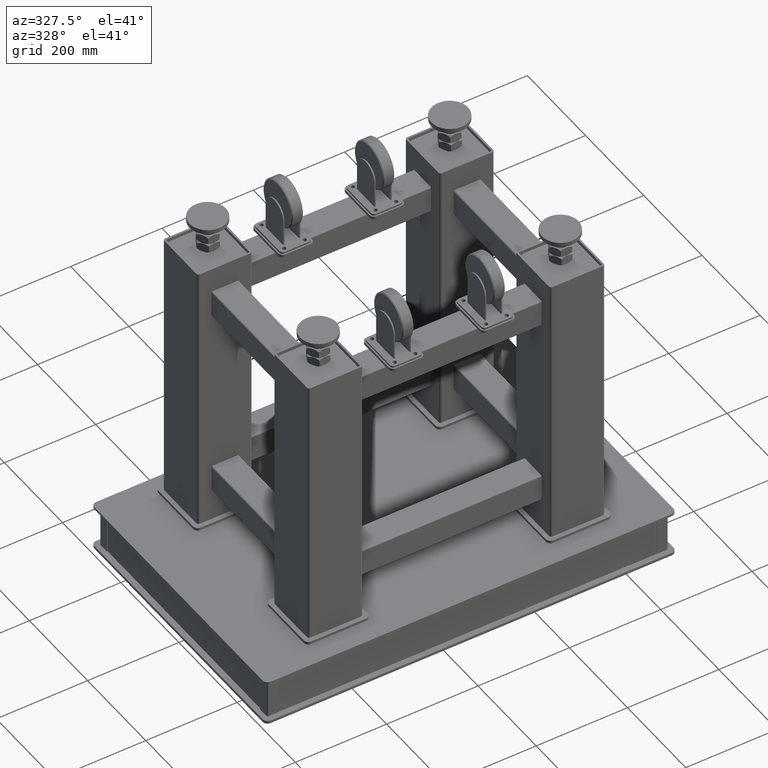
[diagram: clean part render]
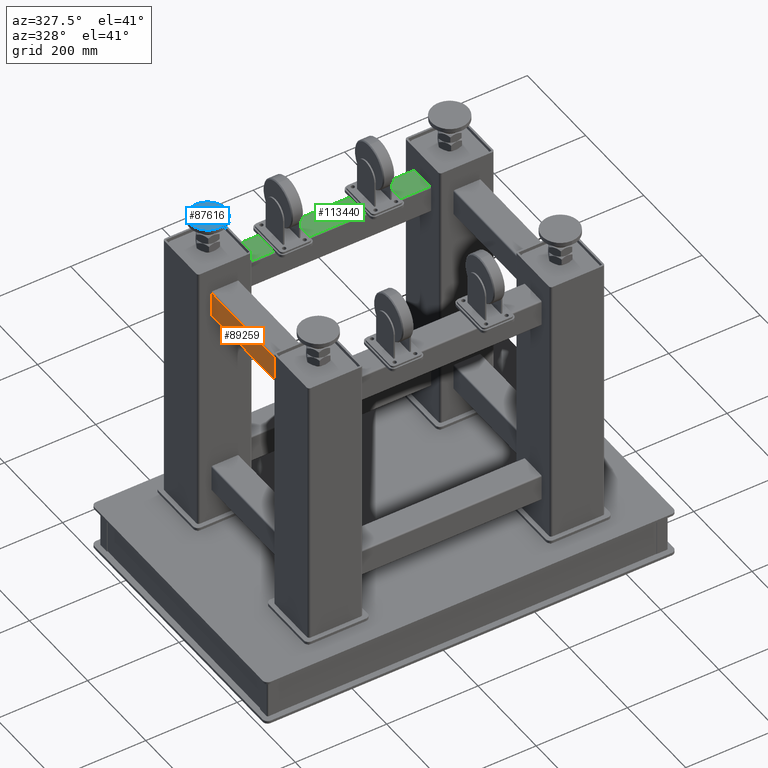
[diagram: same view with three faces highlighted in distinct colors, each labeled with its STEP entity id]
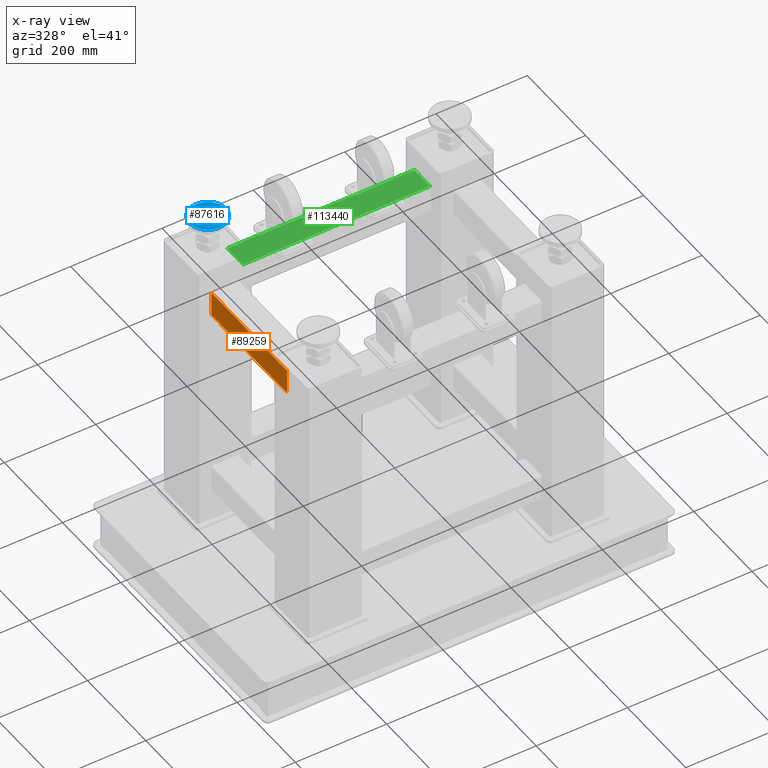
[diagram: x-ray of the same camera — body ghosted, the three highlighted faces saturated]
A machine part, auxiliary view with three faces highlighted in distinct colors.
The next image is the same camera in x-ray (body ghosted, the three faces saturated) — at least one of them is partly hidden behind the body in this view.
Their STEP definitions:

[orange] entity #89259 — the highlighted planar face has unit normal (1, 0, -0).
#1156 = DIRECTION ( 'NONE',  ( 3.803541843623208790E-17, -1.110223024625156787E-16, 1.000000000000000000 ) ) ;
#5625 = CARTESIAN_POINT ( 'NONE',  ( -1047.357977528089350, 67.92441947565563964, 207.5000000000000284 ) ) ;
#6984 = CARTESIAN_POINT ( 'NONE',  ( -1047.357977528089350, -232.0755805243443604, 153.5000000000000568 ) ) ;
#19360 = EDGE_CURVE ( 'NONE', #83468, #59288, #31604, .T. ) ;
#28895 = LINE ( 'NONE', #29522, #111972 ) ;
#29522 = CARTESIAN_POINT ( 'NONE',  ( -1047.357977528089350, -232.0755805243443604, 207.5000000000000000 ) ) ;
#29741 = VECTOR ( 'NONE', #123723, 1000.000000000000000 ) ;
#31604 = LINE ( 'NONE', #118300, #37560 ) ;
#37301 = AXIS2_PLACEMENT_3D ( 'NONE', #119129, #80188, #1156 ) ;
#37560 = VECTOR ( 'NONE', #43108, 1000.000000000000000 ) ;
#43108 = DIRECTION ( 'NONE',  ( -1.665334536937734811E-16, 1.110223024625156787E-16, -1.000000000000000000 ) ) ;
#43143 = ORIENTED_EDGE ( 'NONE', *, *, #19360, .F. ) ;
#45657 = VERTEX_POINT ( 'NONE', #59857 ) ;
#50084 = EDGE_CURVE ( 'NONE', #45657, #111856, #69970, .T. ) ;
#54966 = LINE ( 'NONE', #6984, #29741 ) ;
#58587 = VECTOR ( 'NONE', #108279, 1000.000000000000000 ) ;
#59288 = VERTEX_POINT ( 'NONE', #79363 ) ;
#59857 = CARTESIAN_POINT ( 'NONE',  ( -1047.357977528089350, 327.9244194756557249, 207.5000000000000853 ) ) ;
#66291 = FACE_OUTER_BOUND ( 'NONE', #77871, .T. ) ;
#67746 = DIRECTION ( 'NONE',  ( 6.245004513516505540E-17, -1.000000000000000000, -1.110223024625156787E-16 ) ) ;
#68767 = ORIENTED_EDGE ( 'NONE', *, *, #70555, .F. ) ;
#69970 = LINE ( 'NONE', #89105, #58587 ) ;
#70555 = EDGE_CURVE ( 'NONE', #59288, #111856, #54966, .T. ) ;
#77871 = EDGE_LOOP ( 'NONE', ( #68767, #43143, #110651, #91598 ) ) ;
#79363 = CARTESIAN_POINT ( 'NONE',  ( -1047.357977528089350, 67.92441947565563964, 153.5000000000000284 ) ) ;
#80188 = DIRECTION ( 'NONE',  ( 1.000000000000000000, 6.245004513516506772E-17, -3.803541843623208174E-17 ) ) ;
#83468 = VERTEX_POINT ( 'NONE', #5625 ) ;
#89105 = CARTESIAN_POINT ( 'NONE',  ( -1047.357977528089350, 327.9244194756557249, 207.5000000000000853 ) ) ;
#89259 = ADVANCED_FACE ( 'NONE', ( #66291 ), #124874, .F. ) ;
#91598 = ORIENTED_EDGE ( 'NONE', *, *, #50084, .T. ) ;
#97133 = EDGE_CURVE ( 'NONE', #45657, #83468, #28895, .T. ) ;
#108279 = DIRECTION ( 'NONE',  ( -1.665334536937734811E-16, 1.110223024625156787E-16, -1.000000000000000000 ) ) ;
#110651 = ORIENTED_EDGE ( 'NONE', *, *, #97133, .F. ) ;
#111856 = VERTEX_POINT ( 'NONE', #113737 ) ;
#111972 = VECTOR ( 'NONE', #67746, 1000.000000000000000 ) ;
#113737 = CARTESIAN_POINT ( 'NONE',  ( -1047.357977528089350, 327.9244194756557249, 153.5000000000001137 ) ) ;
#118300 = CARTESIAN_POINT ( 'NONE',  ( -1047.357977528089350, 67.92441947565563964, 207.5000000000000284 ) ) ;
#119129 = CARTESIAN_POINT ( 'NONE',  ( -1047.357977528089350, -232.0755805243443604, 153.5000000000000568 ) ) ;
#123723 = DIRECTION ( 'NONE',  ( -6.245004513516505540E-17, 1.000000000000000000, 1.110223024625156787E-16 ) ) ;
#124874 = PLANE ( 'NONE',  #37301 ) ;

[blue] entity #87616 — the highlighted planar face has unit normal (-0, 0, -1).
#6607 = CARTESIAN_POINT ( 'NONE',  ( -1096.357977528089805, 427.4244194756553838, 337.5000000000000000 ) ) ;
#7136 = DIRECTION ( 'NONE',  ( -1.324385678149759385E-16, 3.983390464853635789E-32, -1.000000000000000000 ) ) ;
#23869 = EDGE_CURVE ( 'NONE', #60946, #46454, #69706, .T. ) ;
#26442 = CARTESIAN_POINT ( 'NONE',  ( -1017.357977528089918, 348.4244194756554407, 337.5000000000000000 ) ) ;
#27127 = CARTESIAN_POINT ( 'NONE',  ( -1017.357977528089918, 427.4244194756553838, 337.5000000000000000 ) ) ;
#30958 = EDGE_LOOP ( 'NONE', ( #121902, #44230 ) ) ;
#37882 = DIRECTION ( 'NONE',  ( 1.324385678149759385E-16, 1.000000000000000000, 2.229393040365437604E-32 ) ) ;
#44230 = ORIENTED_EDGE ( 'NONE', *, *, #85624, .F. ) ;
#46454 = VERTEX_POINT ( 'NONE', #76718 ) ;
#55215 = CARTESIAN_POINT ( 'NONE',  ( -1017.357977528089918, 348.4244194756554407, 337.5000000000000000 ) ) ;
#60946 = VERTEX_POINT ( 'NONE', #67406 ) ;
#65294 = CARTESIAN_POINT ( 'NONE',  ( -938.3579775280899185, 348.4244194756554407, 337.5000000000000000 ) ) ;
#65353 = CARTESIAN_POINT ( 'NONE',  ( -1096.357977528089805, 348.4244194756554407, 337.5000000000000000 ) ) ;
#67406 = CARTESIAN_POINT ( 'NONE',  ( -1017.357977528089918, 427.4244194756553838, 337.5000000000000000 ) ) ;
#69706 =( BOUNDED_CURVE ( )  B_SPLINE_CURVE ( 3, ( #85005, #83745, #65294, #26442 ),
 .UNSPECIFIED., .F., .F. ) 
 B_SPLINE_CURVE_WITH_KNOTS ( ( 4, 4 ),
 ( 0.000000000000000000, 1.000000000000000000 ),
 .UNSPECIFIED. ) 
 CURVE ( )  GEOMETRIC_REPRESENTATION_ITEM ( )  RATIONAL_B_SPLINE_CURVE ( ( 1.000000000000000000, 0.3333333333333333703, 0.3333333333333333703, 1.000000000000000000 ) ) 
 REPRESENTATION_ITEM ( '' )  );
#76718 = CARTESIAN_POINT ( 'NONE',  ( -1017.357977528089918, 348.4244194756554407, 337.5000000000000000 ) ) ;
#83745 = CARTESIAN_POINT ( 'NONE',  ( -938.3579775280899185, 427.4244194756553838, 337.5000000000000000 ) ) ;
#85005 = CARTESIAN_POINT ( 'NONE',  ( -1017.357977528089918, 427.4244194756553838, 337.5000000000000000 ) ) ;
#85624 = EDGE_CURVE ( 'NONE', #46454, #60946, #95262, .T. ) ;
#87616 = ADVANCED_FACE ( 'NONE', ( #115634 ), #123867, .F. ) ;
#95262 =( BOUNDED_CURVE ( )  B_SPLINE_CURVE ( 3, ( #55215, #65353, #6607, #27127 ),
 .UNSPECIFIED., .F., .F. ) 
 B_SPLINE_CURVE_WITH_KNOTS ( ( 4, 4 ),
 ( 0.000000000000000000, 1.000000000000000000 ),
 .UNSPECIFIED. ) 
 CURVE ( )  GEOMETRIC_REPRESENTATION_ITEM ( )  RATIONAL_B_SPLINE_CURVE ( ( 1.000000000000000000, 0.3333333333333333703, 0.3333333333333333703, 1.000000000000000000 ) ) 
 REPRESENTATION_ITEM ( '' )  );
#115634 = FACE_OUTER_BOUND ( 'NONE', #30958, .T. ) ;
#121902 = ORIENTED_EDGE ( 'NONE', *, *, #23869, .F. ) ;
#123867 = PLANE ( 'NONE',  #124352 ) ;
#124352 = AXIS2_PLACEMENT_3D ( 'NONE', #124479, #7136, #37882 ) ;
#124479 = CARTESIAN_POINT ( 'NONE',  ( -1017.357977528089918, 387.9244194756554407, 337.5000000000000000 ) ) ;

[green] entity #113440 — the highlighted planar face has unit normal (-0, 0, -1).
#2957 = ORIENTED_EDGE ( 'NONE', *, *, #111634, .F. ) ;
#10470 = CARTESIAN_POINT ( 'NONE',  ( -1407.357977528090032, 360.9244194756557249, 210.5000000000000853 ) ) ;
#12741 = VERTEX_POINT ( 'NONE', #27353 ) ;
#15654 = EDGE_CURVE ( 'NONE', #88163, #84825, #30375, .T. ) ;
#17848 = DIRECTION ( 'NONE',  ( -5.132691755866019215E-19, 5.007811538377379121E-17, -1.000000000000000000 ) ) ;
#17933 = AXIS2_PLACEMENT_3D ( 'NONE', #36456, #17848, #77701 ) ;
#21323 = LINE ( 'NONE', #118240, #125177 ) ;
#23439 = DIRECTION ( 'NONE',  ( -6.800116025829092931E-17, 1.000000000000000000, 3.070741858988565775E-16 ) ) ;
#25860 = CARTESIAN_POINT ( 'NONE',  ( -957.3579775280900321, 360.9244194756557249, 210.5000000000001137 ) ) ;
#27353 = CARTESIAN_POINT ( 'NONE',  ( -547.3579775280901458, 360.9244194756557249, 210.5000000000001137 ) ) ;
#30375 = LINE ( 'NONE', #98562, #68270 ) ;
#32255 = ORIENTED_EDGE ( 'NONE', *, *, #52774, .T. ) ;
#36456 = CARTESIAN_POINT ( 'NONE',  ( -1407.357977528090032, 414.9244194756556681, 210.5000000000001137 ) ) ;
#39204 = ORIENTED_EDGE ( 'NONE', *, *, #15654, .F. ) ;
#39902 = DIRECTION ( 'NONE',  ( -6.800116025829092931E-17, 1.000000000000000000, 3.070741858988565775E-16 ) ) ;
#49499 = DIRECTION ( 'NONE',  ( -1.000000000000000000, -6.800116025829092931E-17, 5.132691755865984548E-19 ) ) ;
#49878 = ORIENTED_EDGE ( 'NONE', *, *, #122056, .F. ) ;
#52774 = EDGE_CURVE ( 'NONE', #12741, #84825, #120967, .T. ) ;
#54190 = CARTESIAN_POINT ( 'NONE',  ( -957.3579775280900321, 414.9244194756556681, 210.5000000000001137 ) ) ;
#61943 = VECTOR ( 'NONE', #49499, 1000.000000000000000 ) ;
#67544 = PLANE ( 'NONE',  #17933 ) ;
#68270 = VECTOR ( 'NONE', #87712, 1000.000000000000000 ) ;
#72834 = VERTEX_POINT ( 'NONE', #25860 ) ;
#75490 = CARTESIAN_POINT ( 'NONE',  ( -547.3579775280901458, 414.9244194756557818, 210.5000000000001137 ) ) ;
#77701 = DIRECTION ( 'NONE',  ( 6.800116025829092931E-17, -1.000000000000000000, -5.007811538377379121E-17 ) ) ;
#84825 = VERTEX_POINT ( 'NONE', #75490 ) ;
#87712 = DIRECTION ( 'NONE',  ( 1.000000000000000000, 6.800116025829092931E-17, -5.132691755865984548E-19 ) ) ;
#88163 = VERTEX_POINT ( 'NONE', #54190 ) ;
#97878 = LINE ( 'NONE', #10470, #61943 ) ;
#98562 = CARTESIAN_POINT ( 'NONE',  ( -1407.357977528090032, 414.9244194756556681, 210.5000000000001137 ) ) ;
#103991 = VECTOR ( 'NONE', #23439, 1000.000000000000000 ) ;
#104322 = EDGE_LOOP ( 'NONE', ( #39204, #2957, #49878, #32255 ) ) ;
#111634 = EDGE_CURVE ( 'NONE', #72834, #88163, #21323, .T. ) ;
#113440 = ADVANCED_FACE ( 'NONE', ( #126134 ), #67544, .F. ) ;
#118240 = CARTESIAN_POINT ( 'NONE',  ( -957.3579775280900321, 360.9244194756557249, 210.5000000000001137 ) ) ;
#119728 = CARTESIAN_POINT ( 'NONE',  ( -547.3579775280901458, 360.9244194756557249, 210.5000000000001137 ) ) ;
#120967 = LINE ( 'NONE', #119728, #103991 ) ;
#122056 = EDGE_CURVE ( 'NONE', #12741, #72834, #97878, .T. ) ;
#125177 = VECTOR ( 'NONE', #39902, 1000.000000000000000 ) ;
#126134 = FACE_OUTER_BOUND ( 'NONE', #104322, .T. ) ;